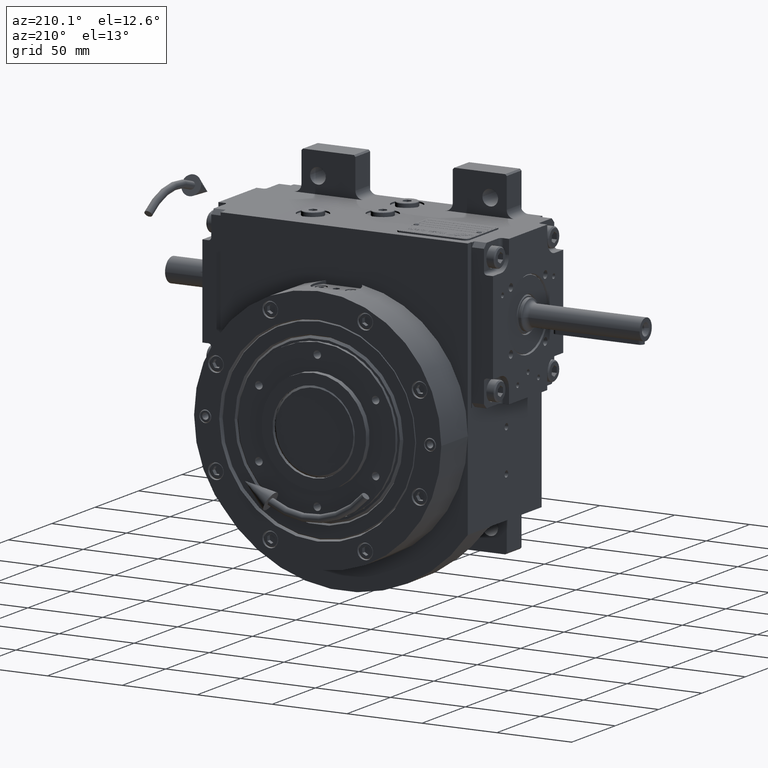
[diagram: clean part render]
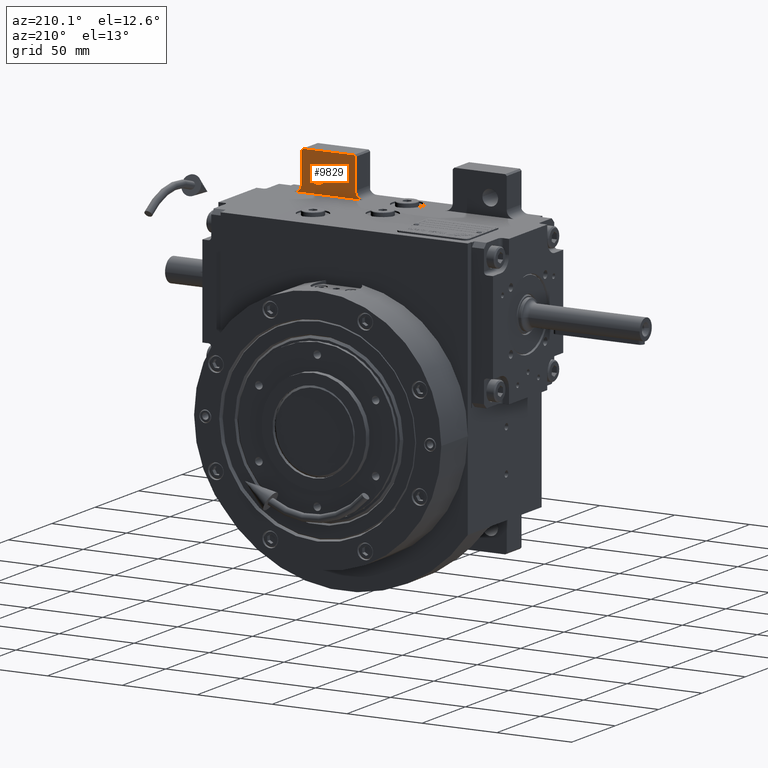
[diagram: same view with one face highlighted and labeled with its STEP entity id]
A machine part, auxiliary view. The second image highlights one B-rep face of the part: STEP entity #9829.
In plain terms, the highlighted planar face has unit normal (0, -1, 0).
Its self-contained STEP definition (entity closure, byte-faithful):
#1128 = CIRCLE ( 'NONE', #17552, 5.249999999999997335 ) ;
#1837 = ORIENTED_EDGE ( 'NONE', *, *, #52041, .T. ) ;
#2595 = LINE ( 'NONE', #31309, #29130 ) ;
#3634 = CARTESIAN_POINT ( 'NONE',  ( 73.50000000000000000, -24.50000000000000000, 119.0000000000000000 ) ) ;
#4163 = ORIENTED_EDGE ( 'NONE', *, *, #58351, .T. ) ;
#5576 = VECTOR ( 'NONE', #46499, 1000.000000000000000 ) ;
#6570 = CARTESIAN_POINT ( 'NONE',  ( 68.50000000000000000, -24.50000000000000000, 139.0000000000000000 ) ) ;
#7417 = LINE ( 'NONE', #41654, #56676 ) ;
#9829 = ADVANCED_FACE ( 'NONE', ( #42013, #18119 ), #62296, .F. ) ;
#9937 = CIRCLE ( 'NONE', #39789, 5.000000000000004441 ) ;
#10223 = DIRECTION ( 'NONE',  ( 1.000000000000000000, 0.000000000000000000, 5.286776307738843186E-15 ) ) ;
#11099 = ORIENTED_EDGE ( 'NONE', *, *, #36100, .F. ) ;
#11385 = VERTEX_POINT ( 'NONE', #38768 ) ;
#11400 = DIRECTION ( 'NONE',  ( -1.000000000000000000, 0.000000000000000000, 5.286776307738843186E-15 ) ) ;
#12315 = VERTEX_POINT ( 'NONE', #55273 ) ;
#13051 = EDGE_CURVE ( 'NONE', #12315, #25510, #16160, .T. ) ;
#13269 = DIRECTION ( 'NONE',  ( -1.000000000000000000, 0.000000000000000000, 0.000000000000000000 ) ) ;
#13593 = ORIENTED_EDGE ( 'NONE', *, *, #53348, .F. ) ;
#13959 = EDGE_CURVE ( 'NONE', #19950, #15434, #34413, .T. ) ;
#14095 = CARTESIAN_POINT ( 'NONE',  ( 57.50000000000000000, -24.50000000000000000, 125.0000000000000000 ) ) ;
#15434 = VERTEX_POINT ( 'NONE', #26518 ) ;
#16128 = DIRECTION ( 'NONE',  ( -1.000000000000000000, 0.000000000000000000, 0.000000000000000000 ) ) ;
#16160 = LINE ( 'NONE', #55500, #39469 ) ;
#16886 = DIRECTION ( 'NONE',  ( 0.000000000000000000, 1.000000000000000000, 0.000000000000000000 ) ) ;
#17552 = AXIS2_PLACEMENT_3D ( 'NONE', #14095, #48954, #10223 ) ;
#17846 = VERTEX_POINT ( 'NONE', #43898 ) ;
#18119 = FACE_OUTER_BOUND ( 'NONE', #47041, .T. ) ;
#19138 = DIRECTION ( 'NONE',  ( -1.387778780781444492E-15, 0.000000000000000000, -1.000000000000000000 ) ) ;
#19950 = VERTEX_POINT ( 'NONE', #34050 ) ;
#20998 = ORIENTED_EDGE ( 'NONE', *, *, #59662, .F. ) ;
#21585 = VECTOR ( 'NONE', #26485, 1000.000000000000114 ) ;
#21900 = CIRCLE ( 'NONE', #35303, 5.000000000000004441 ) ;
#23745 = VERTEX_POINT ( 'NONE', #49218 ) ;
#24345 = ORIENTED_EDGE ( 'NONE', *, *, #13051, .T. ) ;
#25510 = VERTEX_POINT ( 'NONE', #6570 ) ;
#26485 = DIRECTION ( 'NONE',  ( 0.7071067811865474617, 0.000000000000000000, 0.7071067811865474617 ) ) ;
#26518 = CARTESIAN_POINT ( 'NONE',  ( 62.75000000000000000, -24.50000000000000000, 125.0000000000000000 ) ) ;
#26798 = LINE ( 'NONE', #60614, #21585 ) ;
#26808 = CARTESIAN_POINT ( 'NONE',  ( 32.49999999999934630, -24.50000000000000000, 119.0000000000000000 ) ) ;
#27785 = LINE ( 'NONE', #51622, #54324 ) ;
#29130 = VECTOR ( 'NONE', #16128, 1000.000000000000000 ) ;
#29143 = CARTESIAN_POINT ( 'NONE',  ( 27.49999999999934630, -24.50000000000000000, 119.0000000000000000 ) ) ;
#30006 = EDGE_CURVE ( 'NONE', #59643, #11385, #9937, .T. ) ;
#31309 = CARTESIAN_POINT ( 'NONE',  ( 67.50000000000000000, -24.50000000000000000, 140.0000000000000000 ) ) ;
#31469 = AXIS2_PLACEMENT_3D ( 'NONE', #61644, #52305, #13269 ) ;
#34050 = CARTESIAN_POINT ( 'NONE',  ( 52.25000000000000000, -24.50000000000000000, 125.0000000000000000 ) ) ;
#34413 = CIRCLE ( 'NONE', #54978, 5.249999999999997335 ) ;
#35303 = AXIS2_PLACEMENT_3D ( 'NONE', #29143, #48816, #19138 ) ;
#36100 = EDGE_CURVE ( 'NONE', #15434, #19950, #1128, .T. ) ;
#36134 = DIRECTION ( 'NONE',  ( 0.000000000000000000, 0.000000000000000000, 1.000000000000000000 ) ) ;
#36142 = EDGE_LOOP ( 'NONE', ( #11099, #36374 ) ) ;
#36374 = ORIENTED_EDGE ( 'NONE', *, *, #13959, .F. ) ;
#38766 = DIRECTION ( 'NONE',  ( -1.000000000000000000, 0.000000000000000000, 0.000000000000000000 ) ) ;
#38768 = CARTESIAN_POINT ( 'NONE',  ( 73.50000000000000000, -24.50000000000000000, 114.0000000000000000 ) ) ;
#39469 = VECTOR ( 'NONE', #55811, 1000.000000000000114 ) ;
#39789 = AXIS2_PLACEMENT_3D ( 'NONE', #3634, #48124, #38766 ) ;
#40104 = EDGE_CURVE ( 'NONE', #12315, #17846, #2595, .T. ) ;
#40822 = ORIENTED_EDGE ( 'NONE', *, *, #43390, .F. ) ;
#41654 = CARTESIAN_POINT ( 'NONE',  ( 68.50000000000000000, -24.50000000000000000, 119.0000000000000000 ) ) ;
#41672 = DIRECTION ( 'NONE',  ( 1.000000000000000000, 0.000000000000000000, 0.000000000000000000 ) ) ;
#42013 = FACE_BOUND ( 'NONE', #36142, .T. ) ;
#43390 = EDGE_CURVE ( 'NONE', #23745, #11385, #27785, .T. ) ;
#43898 = CARTESIAN_POINT ( 'NONE',  ( 33.49999999999934630, -24.50000000000000000, 140.0000000000000000 ) ) ;
#44320 = VERTEX_POINT ( 'NONE', #50852 ) ;
#45185 = ORIENTED_EDGE ( 'NONE', *, *, #30006, .T. ) ;
#45893 = LINE ( 'NONE', #60985, #5576 ) ;
#45942 = CARTESIAN_POINT ( 'NONE',  ( 57.50000000000000000, -24.50000000000000000, 125.0000000000000000 ) ) ;
#46499 = DIRECTION ( 'NONE',  ( 0.000000000000000000, 0.000000000000000000, -1.000000000000000000 ) ) ;
#47041 = EDGE_LOOP ( 'NONE', ( #20998, #45185, #40822, #1837, #13593, #4163, #59238, #24345 ) ) ;
#47103 = CARTESIAN_POINT ( 'NONE',  ( 68.50000000000000000, -24.50000000000000000, 119.0000000000000000 ) ) ;
#48124 = DIRECTION ( 'NONE',  ( 0.000000000000000000, -1.000000000000000000, 0.000000000000000000 ) ) ;
#48816 = DIRECTION ( 'NONE',  ( 0.000000000000000000, -1.000000000000000000, 0.000000000000000000 ) ) ;
#48954 = DIRECTION ( 'NONE',  ( 0.000000000000000000, 1.000000000000000000, 0.000000000000000000 ) ) ;
#49218 = CARTESIAN_POINT ( 'NONE',  ( 27.49999999999934630, -24.50000000000000000, 114.0000000000000000 ) ) ;
#50852 = CARTESIAN_POINT ( 'NONE',  ( 32.49999999999934630, -24.50000000000000000, 139.0000000000000000 ) ) ;
#51622 = CARTESIAN_POINT ( 'NONE',  ( 27.49999999999934630, -24.50000000000000000, 114.0000000000000000 ) ) ;
#52041 = EDGE_CURVE ( 'NONE', #23745, #59582, #21900, .T. ) ;
#52305 = DIRECTION ( 'NONE',  ( 0.000000000000000000, -1.000000000000000000, 0.000000000000000000 ) ) ;
#53348 = EDGE_CURVE ( 'NONE', #44320, #59582, #45893, .T. ) ;
#54324 = VECTOR ( 'NONE', #41672, 1000.000000000000000 ) ;
#54978 = AXIS2_PLACEMENT_3D ( 'NONE', #45942, #16886, #11400 ) ;
#55273 = CARTESIAN_POINT ( 'NONE',  ( 67.50000000000000000, -24.50000000000000000, 140.0000000000000000 ) ) ;
#55500 = CARTESIAN_POINT ( 'NONE',  ( 67.50000000000000000, -24.50000000000000000, 140.0000000000000000 ) ) ;
#55811 = DIRECTION ( 'NONE',  ( 0.7071067811865474617, 0.000000000000000000, -0.7071067811865474617 ) ) ;
#56676 = VECTOR ( 'NONE', #36134, 1000.000000000000000 ) ;
#58351 = EDGE_CURVE ( 'NONE', #44320, #17846, #26798, .T. ) ;
#59238 = ORIENTED_EDGE ( 'NONE', *, *, #40104, .F. ) ;
#59582 = VERTEX_POINT ( 'NONE', #26808 ) ;
#59643 = VERTEX_POINT ( 'NONE', #47103 ) ;
#59662 = EDGE_CURVE ( 'NONE', #59643, #25510, #7417, .T. ) ;
#60614 = CARTESIAN_POINT ( 'NONE',  ( 32.49999999999934630, -24.50000000000000000, 139.0000000000000000 ) ) ;
#60985 = CARTESIAN_POINT ( 'NONE',  ( 32.49999999999934630, -24.50000000000000000, 139.0000000000000000 ) ) ;
#61644 = CARTESIAN_POINT ( 'NONE',  ( 0.000000000000000000, -24.50000000000000000, 0.000000000000000000 ) ) ;
#62296 = PLANE ( 'NONE',  #31469 ) ;